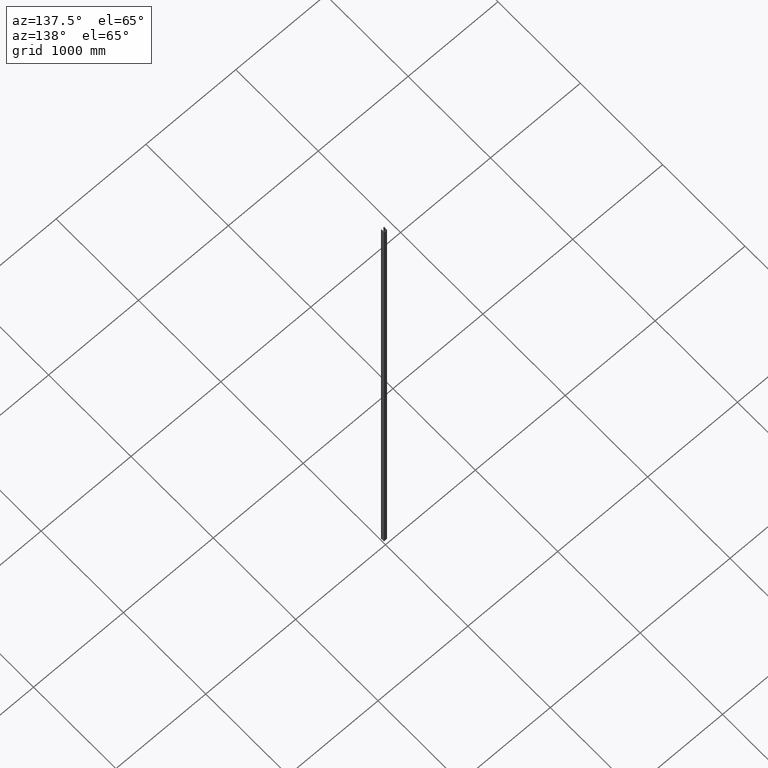
[diagram: clean part render]
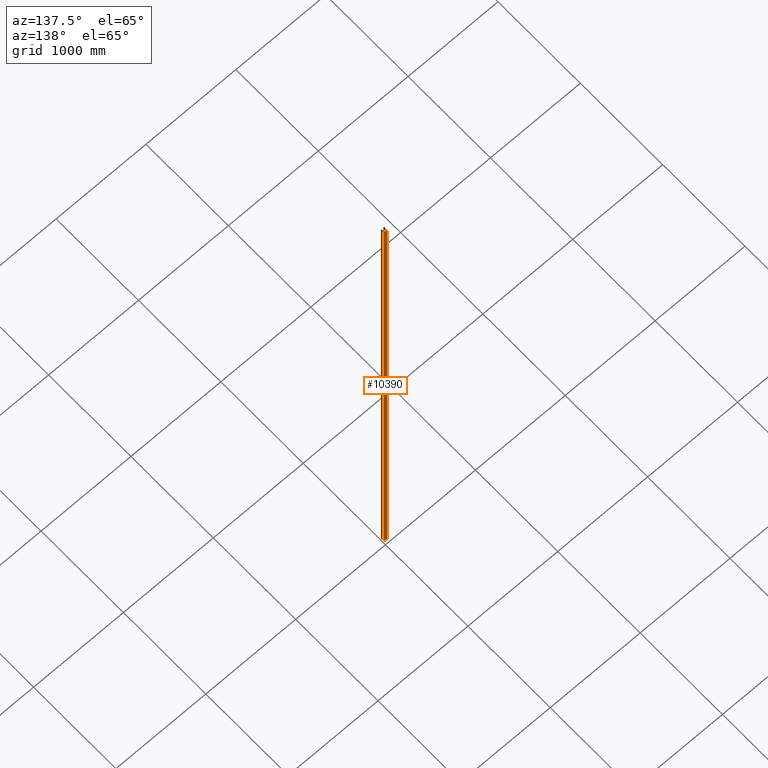
[diagram: same view with one face highlighted and labeled with its STEP entity id]
A machine part, auxiliary view. The second image highlights one B-rep face of the part: STEP entity #10390.
In plain terms, the highlighted planar face has unit normal (0, -1, 0).
Its self-contained STEP definition (entity closure, byte-faithful):
#128 = VECTOR ( 'NONE', #11449, 1000.000000000000000 ) ;
#322 = CARTESIAN_POINT ( 'NONE',  ( 15.40000000006426717, 0.000000000000000000, -3000.000000000000000 ) ) ;
#702 = VERTEX_POINT ( 'NONE', #322 ) ;
#860 = VERTEX_POINT ( 'NONE', #9445 ) ;
#1218 = ORIENTED_EDGE ( 'NONE', *, *, #6217, .F. ) ;
#1234 = VECTOR ( 'NONE', #14175, 1000.000000000000000 ) ;
#1256 = CARTESIAN_POINT ( 'NONE',  ( -15.40000000006426717, 0.000000000000000000, 3000.000000000000000 ) ) ;
#1881 = EDGE_LOOP ( 'NONE', ( #17480, #1218, #2371, #16038 ) ) ;
#2371 = ORIENTED_EDGE ( 'NONE', *, *, #8737, .F. ) ;
#2517 = CARTESIAN_POINT ( 'NONE',  ( -15.40000000006426717, 0.000000000000000000, 3000.000000000000000 ) ) ;
#4657 = LINE ( 'NONE', #11229, #128 ) ;
#4663 = EDGE_CURVE ( 'NONE', #12230, #702, #6060, .T. ) ;
#4914 = CARTESIAN_POINT ( 'NONE',  ( 15.40000000006426717, 0.000000000000000000, 3000.000000000000000 ) ) ;
#6060 = LINE ( 'NONE', #9048, #8695 ) ;
#6217 = EDGE_CURVE ( 'NONE', #9203, #860, #13650, .T. ) ;
#7203 = CARTESIAN_POINT ( 'NONE',  ( -15.40000000006426717, 0.000000000000000000, -3000.000000000000000 ) ) ;
#7538 = LINE ( 'NONE', #7203, #1234 ) ;
#8076 = DIRECTION ( 'NONE',  ( 0.000000000000000000, -1.000000000000000000, 0.000000000000000000 ) ) ;
#8136 = DIRECTION ( 'NONE',  ( 0.000000000000000000, 0.000000000000000000, -1.000000000000000000 ) ) ;
#8695 = VECTOR ( 'NONE', #12012, 1000.000000000000000 ) ;
#8737 = EDGE_CURVE ( 'NONE', #12230, #9203, #4657, .T. ) ;
#9048 = CARTESIAN_POINT ( 'NONE',  ( 15.40000000006426717, 0.000000000000000000, 3000.000000000000000 ) ) ;
#9203 = VERTEX_POINT ( 'NONE', #14024 ) ;
#9445 = CARTESIAN_POINT ( 'NONE',  ( -15.40000000006426717, 0.000000000000000000, -3000.000000000000000 ) ) ;
#10107 = AXIS2_PLACEMENT_3D ( 'NONE', #2517, #8076, #8136 ) ;
#10390 = ADVANCED_FACE ( 'NONE', ( #15679 ), #15105, .F. ) ;
#11229 = CARTESIAN_POINT ( 'NONE',  ( -15.40000000006426717, 0.000000000000000000, 3000.000000000000000 ) ) ;
#11291 = VECTOR ( 'NONE', #17869, 1000.000000000000000 ) ;
#11449 = DIRECTION ( 'NONE',  ( -1.000000000000000000, 0.000000000000000000, 0.000000000000000000 ) ) ;
#12012 = DIRECTION ( 'NONE',  ( 0.000000000000000000, 0.000000000000000000, -1.000000000000000000 ) ) ;
#12230 = VERTEX_POINT ( 'NONE', #4914 ) ;
#13650 = LINE ( 'NONE', #1256, #11291 ) ;
#14024 = CARTESIAN_POINT ( 'NONE',  ( -15.40000000006426717, 0.000000000000000000, 3000.000000000000000 ) ) ;
#14175 = DIRECTION ( 'NONE',  ( -1.000000000000000000, 0.000000000000000000, 0.000000000000000000 ) ) ;
#15105 = PLANE ( 'NONE',  #10107 ) ;
#15679 = FACE_OUTER_BOUND ( 'NONE', #1881, .T. ) ;
#15705 = EDGE_CURVE ( 'NONE', #702, #860, #7538, .T. ) ;
#16038 = ORIENTED_EDGE ( 'NONE', *, *, #4663, .T. ) ;
#17480 = ORIENTED_EDGE ( 'NONE', *, *, #15705, .T. ) ;
#17869 = DIRECTION ( 'NONE',  ( 0.000000000000000000, 0.000000000000000000, -1.000000000000000000 ) ) ;